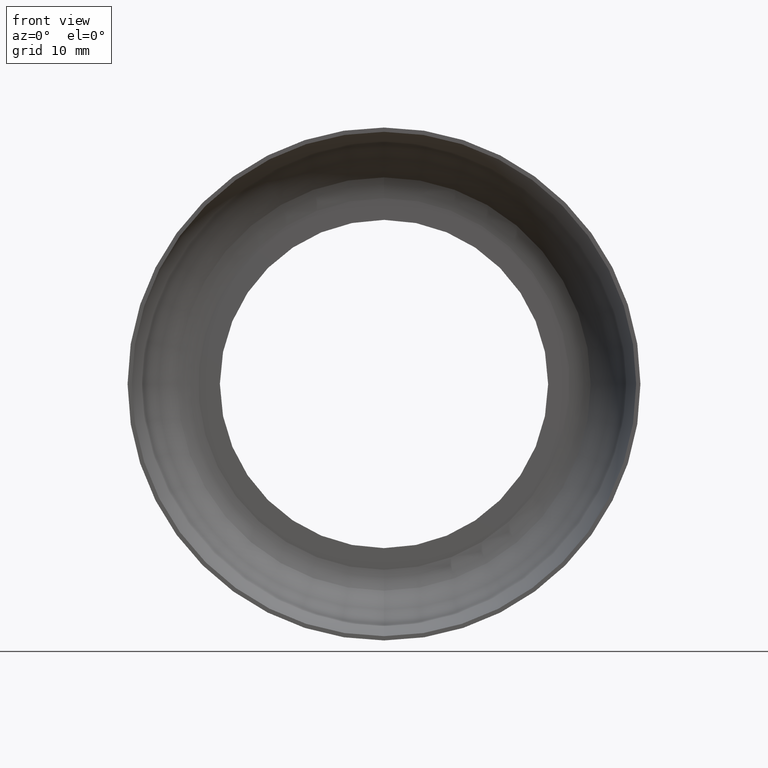
[diagram: clean part render]
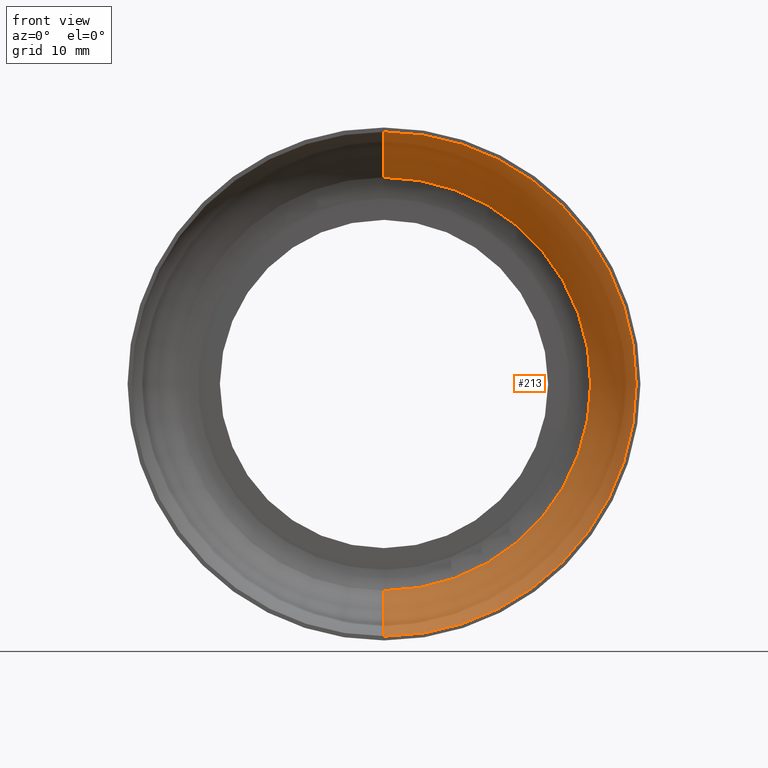
[diagram: same view with one face highlighted and labeled with its STEP entity id]
A machine part, front view. The second image highlights one B-rep face of the part: STEP entity #213.
In plain terms, the highlighted toroidal blend (fillet) surface has major radius 17.8571 mm and minor (blend) radius 11.6429 mm.
Its self-contained STEP definition (entity closure, byte-faithful):
#9 = CARTESIAN_POINT ( 'NONE',  ( 0.0000000000000000000, 9.779999999999997600, 0.0000000000000000000 ) ) ;
#34 = DIRECTION ( 'NONE',  ( -0.0000000000000000000, -1.000000000000000000, -0.0000000000000000000 ) ) ;
#35 = TOROIDAL_SURFACE ( 'NONE', #342, 17.85714285714285800, 11.64285714285714200 ) ;
#47 = CIRCLE ( 'NONE', #398, 29.50000000000000000 ) ;
#48 = EDGE_CURVE ( 'NONE', #120, #199, #216, .T. ) ;
#55 = FACE_OUTER_BOUND ( 'NONE', #308, .T. ) ;
#80 = DIRECTION ( 'NONE',  ( -1.224646799147353200E-016, 0.0000000000000000000, -1.000000000000000000 ) ) ;
#81 = CARTESIAN_POINT ( 'NONE',  ( 0.0000000000000000000, 0.0000000000000000000, 0.0000000000000000000 ) ) ;
#104 = CIRCLE ( 'NONE', #326, 11.64285714285714200 ) ;
#120 = VERTEX_POINT ( 'NONE', #392 ) ;
#132 = DIRECTION ( 'NONE',  ( 0.0000000000000000000, 0.0000000000000000000, -1.000000000000000000 ) ) ;
#133 = VERTEX_POINT ( 'NONE', #236 ) ;
#149 = CARTESIAN_POINT ( 'NONE',  ( 0.0000000000000000000, 0.0000000000000000000, 0.0000000000000000000 ) ) ;
#155 = AXIS2_PLACEMENT_3D ( 'NONE', #370, #317, #374 ) ;
#163 = DIRECTION ( 'NONE',  ( -0.0000000000000000000, -1.000000000000000000, -0.0000000000000000000 ) ) ;
#171 = EDGE_CURVE ( 'NONE', #199, #226, #47, .T. ) ;
#197 = CARTESIAN_POINT ( 'NONE',  ( 3.612708057484691600E-015, 0.0000000000000000000, 29.50000000000000000 ) ) ;
#199 = VERTEX_POINT ( 'NONE', #384 ) ;
#213 = ADVANCED_FACE ( 'NONE', ( #55 ), #35, .F. ) ;
#216 = CIRCLE ( 'NONE', #155, 11.64285714285714200 ) ;
#226 = VERTEX_POINT ( 'NONE', #197 ) ;
#236 = CARTESIAN_POINT ( 'NONE',  ( 2.960510009248309900E-015, 9.779999999999997600, 24.17439878428239600 ) ) ;
#237 = AXIS2_PLACEMENT_3D ( 'NONE', #9, #287, #381 ) ;
#245 = ORIENTED_EDGE ( 'NONE', *, *, #252, .F. ) ;
#249 = CIRCLE ( 'NONE', #237, 24.17439878428239600 ) ;
#252 = EDGE_CURVE ( 'NONE', #120, #133, #249, .T. ) ;
#268 = DIRECTION ( 'NONE',  ( 1.000000000000000000, 0.0000000000000000000, -1.224646799147353200E-016 ) ) ;
#287 = DIRECTION ( 'NONE',  ( -0.0000000000000000000, -1.000000000000000000, -0.0000000000000000000 ) ) ;
#297 = CARTESIAN_POINT ( 'NONE',  ( 2.186869284191702100E-015, 0.0000000000000000000, 17.85714285714285800 ) ) ;
#299 = ORIENTED_EDGE ( 'NONE', *, *, #171, .T. ) ;
#302 = ORIENTED_EDGE ( 'NONE', *, *, #48, .T. ) ;
#308 = EDGE_LOOP ( 'NONE', ( #364, #245, #302, #299 ) ) ;
#317 = DIRECTION ( 'NONE',  ( -1.000000000000000000, 0.0000000000000000000, 0.0000000000000000000 ) ) ;
#326 = AXIS2_PLACEMENT_3D ( 'NONE', #297, #268, #80 ) ;
#342 = AXIS2_PLACEMENT_3D ( 'NONE', #81, #163, #132 ) ;
#358 = EDGE_CURVE ( 'NONE', #133, #226, #104, .T. ) ;
#364 = ORIENTED_EDGE ( 'NONE', *, *, #358, .F. ) ;
#370 = CARTESIAN_POINT ( 'NONE',  ( 0.0000000000000000000, 0.0000000000000000000, -17.85714285714285800 ) ) ;
#374 = DIRECTION ( 'NONE',  ( 0.0000000000000000000, 0.0000000000000000000, 1.000000000000000000 ) ) ;
#381 = DIRECTION ( 'NONE',  ( 0.0000000000000000000, 0.0000000000000000000, -1.000000000000000000 ) ) ;
#384 = CARTESIAN_POINT ( 'NONE',  ( 0.0000000000000000000, 0.0000000000000000000, -29.50000000000000000 ) ) ;
#392 = CARTESIAN_POINT ( 'NONE',  ( 0.0000000000000000000, 9.779999999999997600, -24.17439878428239600 ) ) ;
#398 = AXIS2_PLACEMENT_3D ( 'NONE', #149, #34, #402 ) ;
#402 = DIRECTION ( 'NONE',  ( 0.0000000000000000000, 0.0000000000000000000, -1.000000000000000000 ) ) ;